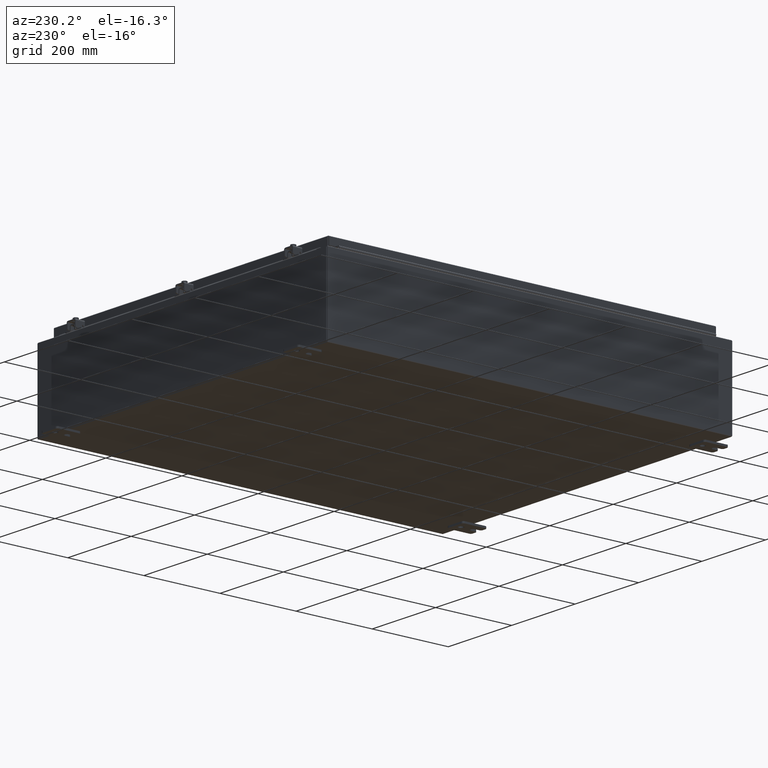
[diagram: clean part render]
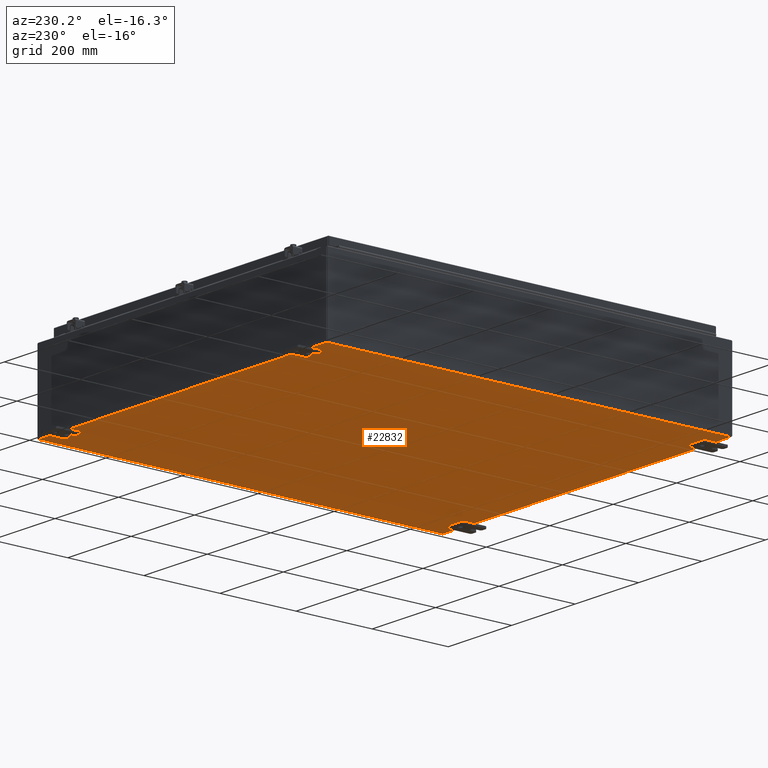
[diagram: same view with one face highlighted and labeled with its STEP entity id]
A machine part, auxiliary view. The second image highlights one B-rep face of the part: STEP entity #22832.
In plain terms, the highlighted planar face has unit normal (0, 0, -1).
Its self-contained STEP definition (entity closure, byte-faithful):
#1188 = VECTOR ( 'NONE', #44524, 39.37007874015748100 ) ;
#1225 = CARTESIAN_POINT ( 'NONE',  ( -17.91229999999999800, -20.92529999999999600, -0.07469999999999994700 ) ) ;
#2425 = CARTESIAN_POINT ( 'NONE',  ( -17.99999999999999600, 20.92529999999999600, -0.07470000000000000300 ) ) ;
#2609 = CARTESIAN_POINT ( 'NONE',  ( 17.91230000000000200, 20.92529999999998600, -0.07469999999999994700 ) ) ;
#3267 = LINE ( 'NONE', #44974, #42718 ) ;
#4150 = ORIENTED_EDGE ( 'NONE', *, *, #15067, .T. ) ;
#5465 = LINE ( 'NONE', #1225, #13223 ) ;
#10454 = CARTESIAN_POINT ( 'NONE',  ( -17.91229999999999800, -20.92529999999999300, -0.07469999999999994700 ) ) ;
#12852 = CARTESIAN_POINT ( 'NONE',  ( 17.91230000000000200, 20.92529999999998900, -0.07469999999999994700 ) ) ;
#13223 = VECTOR ( 'NONE', #23929, 39.37007874015748100 ) ;
#15067 = EDGE_CURVE ( 'NONE', #44750, #20901, #33828, .T. ) ;
#16651 = DIRECTION ( 'NONE',  ( -0.0000000000000000000, -1.000000000000000000, -0.0000000000000000000 ) ) ;
#20395 = EDGE_CURVE ( 'NONE', #44750, #28316, #43033, .T. ) ;
#20901 = VERTEX_POINT ( 'NONE', #24384 ) ;
#22832 = ADVANCED_FACE ( 'NONE', ( #28739 ), #37031, .T. ) ;
#23161 = EDGE_CURVE ( 'NONE', #35121, #28316, #5465, .T. ) ;
#23654 = VECTOR ( 'NONE', #16651, 39.37007874015748100 ) ;
#23929 = DIRECTION ( 'NONE',  ( -0.0000000000000000000, 1.000000000000000000, -0.0000000000000000000 ) ) ;
#24384 = CARTESIAN_POINT ( 'NONE',  ( 17.91230000000000200, -20.92530000000000700, -0.07470000000000000300 ) ) ;
#25067 = ORIENTED_EDGE ( 'NONE', *, *, #20395, .F. ) ;
#26887 = ORIENTED_EDGE ( 'NONE', *, *, #23161, .T. ) ;
#27038 = CARTESIAN_POINT ( 'NONE',  ( -17.91229999999999800, 20.92529999999999600, -0.07470000000000000300 ) ) ;
#28316 = VERTEX_POINT ( 'NONE', #27038 ) ;
#28739 = FACE_OUTER_BOUND ( 'NONE', #44675, .T. ) ;
#29682 = DIRECTION ( 'NONE',  ( 1.000000000000000000, -1.214154663850783700E-016, 0.0000000000000000000 ) ) ;
#33828 = LINE ( 'NONE', #12852, #23654 ) ;
#35121 = VERTEX_POINT ( 'NONE', #10454 ) ;
#36843 = DIRECTION ( 'NONE',  ( 0.0000000000000000000, 0.0000000000000000000, -1.000000000000000000 ) ) ;
#37031 = PLANE ( 'NONE',  #46990 ) ;
#40878 = CARTESIAN_POINT ( 'NONE',  ( 0.0000000000000000000, 0.0000000000000000000, -0.07470000000000000300 ) ) ;
#41354 = EDGE_CURVE ( 'NONE', #35121, #20901, #3267, .T. ) ;
#42718 = VECTOR ( 'NONE', #29682, 39.37007874015748100 ) ;
#43033 = LINE ( 'NONE', #2425, #1188 ) ;
#44524 = DIRECTION ( 'NONE',  ( -1.000000000000000000, -0.0000000000000000000, -0.0000000000000000000 ) ) ;
#44675 = EDGE_LOOP ( 'NONE', ( #46627, #26887, #25067, #4150 ) ) ;
#44702 = DIRECTION ( 'NONE',  ( -1.000000000000000000, 0.0000000000000000000, -0.0000000000000000000 ) ) ;
#44750 = VERTEX_POINT ( 'NONE', #2609 ) ;
#44974 = CARTESIAN_POINT ( 'NONE',  ( -17.99999999999999600, -20.92530000000000400, -0.07470000000000000300 ) ) ;
#46627 = ORIENTED_EDGE ( 'NONE', *, *, #41354, .F. ) ;
#46990 = AXIS2_PLACEMENT_3D ( 'NONE', #40878, #36843, #44702 ) ;